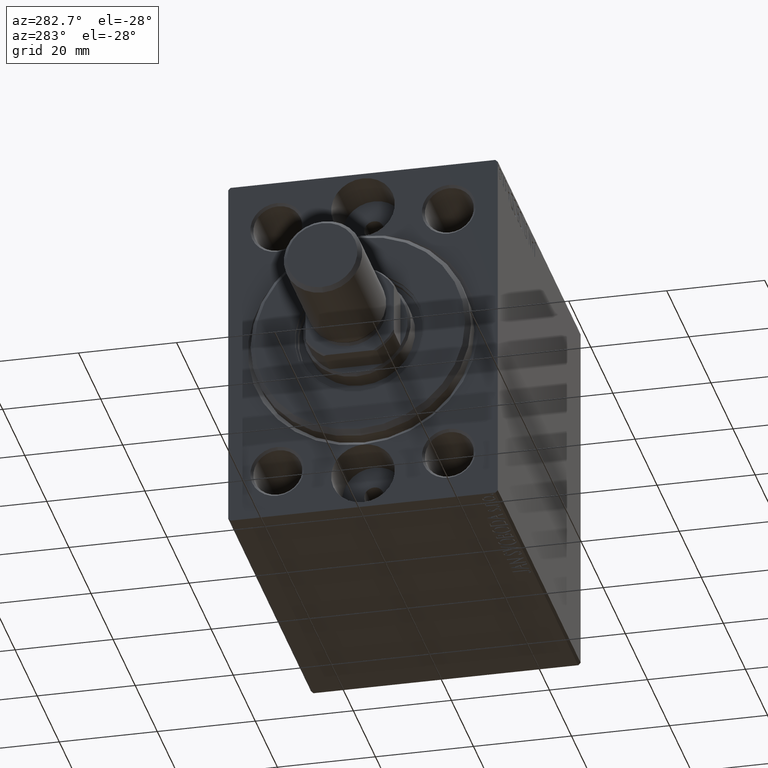
[diagram: clean part render]
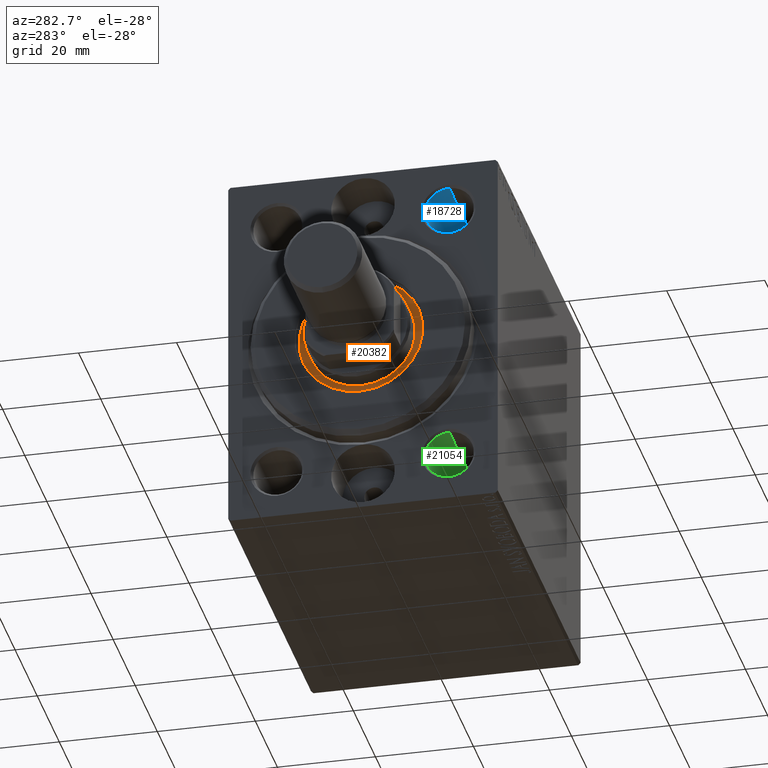
[diagram: same view with three faces highlighted in distinct colors, each labeled with its STEP entity id]
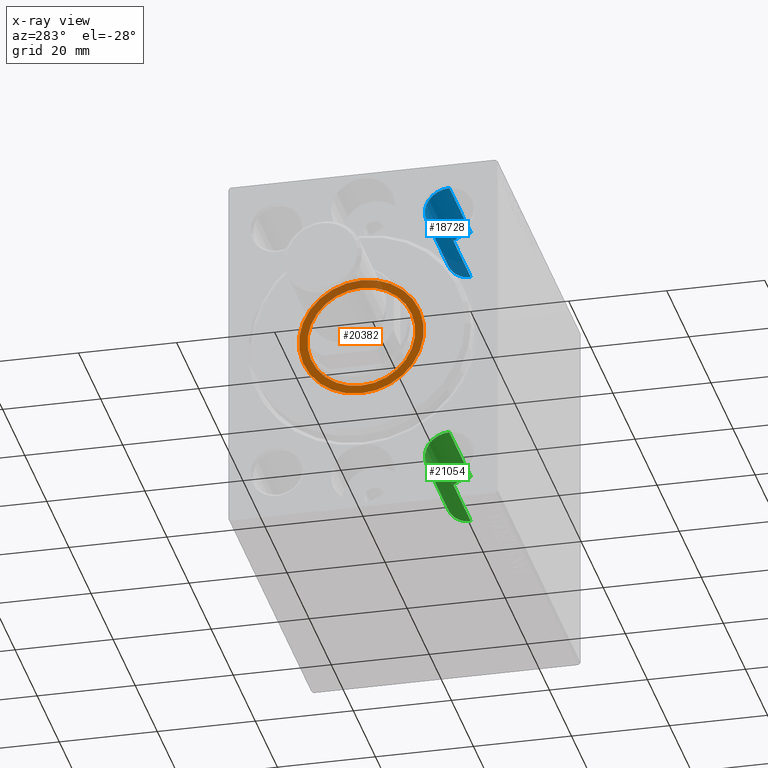
[diagram: x-ray of the same camera — body ghosted, the three highlighted faces saturated]
A machine part, auxiliary view with three faces highlighted in distinct colors.
The next image is the same camera in x-ray (body ghosted, the three faces saturated) — at least one of them is partly hidden behind the body in this view.
Their STEP definitions:

[orange] entity #20382 — the highlighted planar face has unit normal (-1, 0, 0).
#2315 = EDGE_CURVE ( 'NONE', #20104, #41399, #23286, .T. ) ;
#5471 = DIRECTION ( 'NONE',  ( 1.000000000000000000, 0.000000000000000000, 0.000000000000000000 ) ) ;
#6119 = CARTESIAN_POINT ( 'NONE',  ( 1.499999999999999556, 1.347111479062088405E-15, 11.00000000000000000 ) ) ;
#6175 = CARTESIAN_POINT ( 'NONE',  ( 1.500000000000000000, 0.000000000000000000, 12.75000000000000000 ) ) ;
#7501 = VERTEX_POINT ( 'NONE', #6119 ) ;
#8800 = DIRECTION ( 'NONE',  ( 0.000000000000000000, 0.000000000000000000, -1.000000000000000000 ) ) ;
#8837 = DIRECTION ( 'NONE',  ( 0.000000000000000000, 0.000000000000000000, -1.000000000000000000 ) ) ;
#9487 = CARTESIAN_POINT ( 'NONE',  ( 1.500000000000000000, 0.000000000000000000, 0.000000000000000000 ) ) ;
#9710 = CARTESIAN_POINT ( 'NONE',  ( 1.500000000000000000, 0.000000000000000000, 0.000000000000000000 ) ) ;
#10539 = CIRCLE ( 'NONE', #13434, 12.75000000000000000 ) ;
#10987 = AXIS2_PLACEMENT_3D ( 'NONE', #18367, #35925, #42475 ) ;
#11066 = CARTESIAN_POINT ( 'NONE',  ( 1.500000000000000000, 1.561424668912874914E-15, -12.75000000000000000 ) ) ;
#11866 = ORIENTED_EDGE ( 'NONE', *, *, #38008, .T. ) ;
#13222 = VERTEX_POINT ( 'NONE', #20465 ) ;
#13434 = AXIS2_PLACEMENT_3D ( 'NONE', #9487, #39892, #8800 ) ;
#18123 = AXIS2_PLACEMENT_3D ( 'NONE', #26169, #5471, #8837 ) ;
#18367 = CARTESIAN_POINT ( 'NONE',  ( 1.499999999999999556, 0.000000000000000000, 0.000000000000000000 ) ) ;
#20104 = VERTEX_POINT ( 'NONE', #6175 ) ;
#20382 = ADVANCED_FACE ( 'NONE', ( #29537, #29756 ), #39675, .T. ) ;
#20465 = CARTESIAN_POINT ( 'NONE',  ( 1.499999999999999556, 0.000000000000000000, -11.00000000000000000 ) ) ;
#23286 = CIRCLE ( 'NONE', #36224, 12.75000000000000000 ) ;
#26169 = CARTESIAN_POINT ( 'NONE',  ( 1.499999999999999556, 0.000000000000000000, 0.000000000000000000 ) ) ;
#26377 = CARTESIAN_POINT ( 'NONE',  ( 1.500000000000000000, 0.000000000000000000, 0.000000000000000000 ) ) ;
#26823 = DIRECTION ( 'NONE',  ( 0.000000000000000000, 0.000000000000000000, -1.000000000000000000 ) ) ;
#26870 = EDGE_CURVE ( 'NONE', #13222, #7501, #37564, .T. ) ;
#27889 = EDGE_CURVE ( 'NONE', #7501, #13222, #35425, .T. ) ;
#29383 = AXIS2_PLACEMENT_3D ( 'NONE', #26377, #43739, #39900 ) ;
#29537 = FACE_BOUND ( 'NONE', #30896, .T. ) ;
#29756 = FACE_OUTER_BOUND ( 'NONE', #41626, .T. ) ;
#30896 = EDGE_LOOP ( 'NONE', ( #32764, #37864 ) ) ;
#32764 = ORIENTED_EDGE ( 'NONE', *, *, #26870, .F. ) ;
#35425 = CIRCLE ( 'NONE', #10987, 11.00000000000000000 ) ;
#35925 = DIRECTION ( 'NONE',  ( 1.000000000000000000, 0.000000000000000000, 0.000000000000000000 ) ) ;
#36224 = AXIS2_PLACEMENT_3D ( 'NONE', #9710, #36729, #26823 ) ;
#36729 = DIRECTION ( 'NONE',  ( 1.000000000000000000, 0.000000000000000000, 0.000000000000000000 ) ) ;
#37434 = ORIENTED_EDGE ( 'NONE', *, *, #2315, .T. ) ;
#37564 = CIRCLE ( 'NONE', #18123, 11.00000000000000000 ) ;
#37864 = ORIENTED_EDGE ( 'NONE', *, *, #27889, .F. ) ;
#38008 = EDGE_CURVE ( 'NONE', #41399, #20104, #10539, .T. ) ;
#39675 = PLANE ( 'NONE',  #29383 ) ;
#39892 = DIRECTION ( 'NONE',  ( 1.000000000000000000, 0.000000000000000000, 0.000000000000000000 ) ) ;
#39900 = DIRECTION ( 'NONE',  ( 0.000000000000000000, 0.000000000000000000, -1.000000000000000000 ) ) ;
#41399 = VERTEX_POINT ( 'NONE', #11066 ) ;
#41626 = EDGE_LOOP ( 'NONE', ( #37434, #11866 ) ) ;
#42475 = DIRECTION ( 'NONE',  ( 0.000000000000000000, 0.000000000000000000, -1.000000000000000000 ) ) ;
#43739 = DIRECTION ( 'NONE',  ( 1.000000000000000000, 0.000000000000000000, 0.000000000000000000 ) ) ;

[blue] entity #18728 — the highlighted cylindrical surface (edge-blend (fillet) strip) has radius 5 mm, axis along (-1, -0, -0).
#1689 = ORIENTED_EDGE ( 'NONE', *, *, #41280, .T. ) ;
#2580 = DIRECTION ( 'NONE',  ( -1.000000000000000000, 0.000000000000000000, 0.000000000000000000 ) ) ;
#3569 = DIRECTION ( 'NONE',  ( -1.000000000000000000, -0.000000000000000000, -0.000000000000000000 ) ) ;
#3849 = DIRECTION ( 'NONE',  ( -1.000000000000000000, -0.000000000000000000, -0.000000000000000000 ) ) ;
#4817 = AXIS2_PLACEMENT_3D ( 'NONE', #10372, #3849, #44402 ) ;
#5136 = DIRECTION ( 'NONE',  ( 0.000000000000000000, 0.000000000000000000, 1.000000000000000000 ) ) ;
#5301 = CARTESIAN_POINT ( 'NONE',  ( 20.00000000000000000, -17.50000000000000000, 22.50000000000000711 ) ) ;
#7014 = CIRCLE ( 'NONE', #4817, 4.999999999999993783 ) ;
#10372 = CARTESIAN_POINT ( 'NONE',  ( 20.00000000000000000, -17.50000000000000000, 27.50000000000000000 ) ) ;
#11443 = CARTESIAN_POINT ( 'NONE',  ( 0.000000000000000000, -17.50000000000000000, 27.50000000000000000 ) ) ;
#18114 = VERTEX_POINT ( 'NONE', #35452 ) ;
#18517 = ORIENTED_EDGE ( 'NONE', *, *, #18942, .F. ) ;
#18728 = ADVANCED_FACE ( 'NONE', ( #21788 ), #35968, .F. ) ;
#18942 = EDGE_CURVE ( 'NONE', #36408, #24925, #40724, .T. ) ;
#21788 = FACE_OUTER_BOUND ( 'NONE', #42829, .T. ) ;
#22247 = DIRECTION ( 'NONE',  ( -1.000000000000000000, -0.000000000000000000, -0.000000000000000000 ) ) ;
#24925 = VERTEX_POINT ( 'NONE', #38573 ) ;
#25150 = VERTEX_POINT ( 'NONE', #35850 ) ;
#25395 = ORIENTED_EDGE ( 'NONE', *, *, #38580, .T. ) ;
#26191 = DIRECTION ( 'NONE',  ( 0.000000000000000000, 0.000000000000000000, -1.000000000000000000 ) ) ;
#29132 = LINE ( 'NONE', #36330, #43766 ) ;
#29987 = AXIS2_PLACEMENT_3D ( 'NONE', #40628, #2580, #26191 ) ;
#30100 = AXIS2_PLACEMENT_3D ( 'NONE', #11443, #22247, #5136 ) ;
#34310 = CIRCLE ( 'NONE', #29987, 4.999999999999997335 ) ;
#35452 = CARTESIAN_POINT ( 'NONE',  ( 20.00000000000000000, -17.50000000000000000, 32.49999999999999289 ) ) ;
#35850 = CARTESIAN_POINT ( 'NONE',  ( 0.5000000000000246470, -17.50000000000000000, 32.50000000000000000 ) ) ;
#35886 = DIRECTION ( 'NONE',  ( -1.000000000000000000, -0.000000000000000000, -0.000000000000000000 ) ) ;
#35968 = CYLINDRICAL_SURFACE ( 'NONE', #30100, 5.000000000000000888 ) ;
#36330 = CARTESIAN_POINT ( 'NONE',  ( 0.000000000000000000, -17.50000000000000000, 32.50000000000000000 ) ) ;
#36408 = VERTEX_POINT ( 'NONE', #5301 ) ;
#37163 = ORIENTED_EDGE ( 'NONE', *, *, #38083, .F. ) ;
#37275 = VECTOR ( 'NONE', #3569, 1000.000000000000000 ) ;
#37767 = CARTESIAN_POINT ( 'NONE',  ( 0.000000000000000000, -17.50000000000000000, 22.50000000000000355 ) ) ;
#38083 = EDGE_CURVE ( 'NONE', #18114, #36408, #7014, .T. ) ;
#38573 = CARTESIAN_POINT ( 'NONE',  ( 0.5000000000000246470, -17.50000000000000000, 22.50000000000000355 ) ) ;
#38580 = EDGE_CURVE ( 'NONE', #25150, #24925, #34310, .T. ) ;
#40628 = CARTESIAN_POINT ( 'NONE',  ( 0.5000000000000246470, -17.50000000000000000, 27.50000000000000000 ) ) ;
#40724 = LINE ( 'NONE', #37767, #37275 ) ;
#41280 = EDGE_CURVE ( 'NONE', #18114, #25150, #29132, .T. ) ;
#42829 = EDGE_LOOP ( 'NONE', ( #18517, #37163, #1689, #25395 ) ) ;
#43766 = VECTOR ( 'NONE', #35886, 1000.000000000000000 ) ;
#44402 = DIRECTION ( 'NONE',  ( 0.000000000000000000, 0.000000000000000000, 1.000000000000000000 ) ) ;

[green] entity #21054 — the highlighted cylindrical surface (edge-blend (fillet) strip) has radius 5 mm, axis along (-1, -0, -0).
#2163 = VERTEX_POINT ( 'NONE', #29299 ) ;
#2892 = EDGE_CURVE ( 'NONE', #15597, #25548, #5672, .T. ) ;
#3039 = DIRECTION ( 'NONE',  ( -1.000000000000000000, -0.000000000000000000, -0.000000000000000000 ) ) ;
#3260 = LINE ( 'NONE', #27940, #42948 ) ;
#4309 = CARTESIAN_POINT ( 'NONE',  ( 0.5000000000000247580, -17.50000000000000000, -27.49999999999999645 ) ) ;
#4579 = CARTESIAN_POINT ( 'NONE',  ( 20.00000000000000000, -17.50000000000000000, -22.50000000000000000 ) ) ;
#5492 = DIRECTION ( 'NONE',  ( 0.000000000000000000, 0.000000000000000000, 1.000000000000000000 ) ) ;
#5672 = LINE ( 'NONE', #31634, #17518 ) ;
#6838 = CARTESIAN_POINT ( 'NONE',  ( 0.000000000000000000, -17.50000000000000000, -27.49999999999999645 ) ) ;
#7240 = DIRECTION ( 'NONE',  ( -1.000000000000000000, 0.000000000000000000, 0.000000000000000000 ) ) ;
#10219 = EDGE_CURVE ( 'NONE', #2163, #25548, #44363, .T. ) ;
#10437 = FACE_OUTER_BOUND ( 'NONE', #43880, .T. ) ;
#10782 = ORIENTED_EDGE ( 'NONE', *, *, #10219, .T. ) ;
#12014 = DIRECTION ( 'NONE',  ( -1.000000000000000000, -0.000000000000000000, -0.000000000000000000 ) ) ;
#15597 = VERTEX_POINT ( 'NONE', #21280 ) ;
#15904 = EDGE_CURVE ( 'NONE', #30942, #2163, #3260, .T. ) ;
#17099 = ORIENTED_EDGE ( 'NONE', *, *, #2892, .F. ) ;
#17518 = VECTOR ( 'NONE', #19170, 1000.000000000000000 ) ;
#19170 = DIRECTION ( 'NONE',  ( -1.000000000000000000, -0.000000000000000000, -0.000000000000000000 ) ) ;
#20793 = CYLINDRICAL_SURFACE ( 'NONE', #33012, 4.999999999999997335 ) ;
#21054 = ADVANCED_FACE ( 'NONE', ( #10437 ), #20793, .F. ) ;
#21280 = CARTESIAN_POINT ( 'NONE',  ( 20.00000000000000000, -17.50000000000000000, -32.49999999999999289 ) ) ;
#25396 = CIRCLE ( 'NONE', #44161, 4.999999999999997335 ) ;
#25548 = VERTEX_POINT ( 'NONE', #33041 ) ;
#27764 = DIRECTION ( 'NONE',  ( 0.000000000000000000, 0.000000000000000000, 1.000000000000000000 ) ) ;
#27940 = CARTESIAN_POINT ( 'NONE',  ( 0.000000000000000000, -17.50000000000000000, -22.50000000000000000 ) ) ;
#28370 = ORIENTED_EDGE ( 'NONE', *, *, #15904, .T. ) ;
#29107 = EDGE_CURVE ( 'NONE', #30942, #15597, #25396, .T. ) ;
#29299 = CARTESIAN_POINT ( 'NONE',  ( 0.5000000000000247580, -17.50000000000000000, -22.50000000000000000 ) ) ;
#30942 = VERTEX_POINT ( 'NONE', #4579 ) ;
#31634 = CARTESIAN_POINT ( 'NONE',  ( 0.000000000000000000, -17.50000000000000000, -32.49999999999999289 ) ) ;
#33012 = AXIS2_PLACEMENT_3D ( 'NONE', #6838, #3039, #27764 ) ;
#33041 = CARTESIAN_POINT ( 'NONE',  ( 0.5000000000000247580, -17.50000000000000000, -32.49999999999999289 ) ) ;
#35696 = AXIS2_PLACEMENT_3D ( 'NONE', #4309, #7240, #37638 ) ;
#37638 = DIRECTION ( 'NONE',  ( 0.000000000000000000, 0.000000000000000000, -1.000000000000000000 ) ) ;
#41680 = DIRECTION ( 'NONE',  ( -1.000000000000000000, -0.000000000000000000, -0.000000000000000000 ) ) ;
#42878 = CARTESIAN_POINT ( 'NONE',  ( 20.00000000000000000, -17.50000000000000000, -27.49999999999999645 ) ) ;
#42948 = VECTOR ( 'NONE', #41680, 1000.000000000000000 ) ;
#43335 = ORIENTED_EDGE ( 'NONE', *, *, #29107, .F. ) ;
#43880 = EDGE_LOOP ( 'NONE', ( #17099, #43335, #28370, #10782 ) ) ;
#44161 = AXIS2_PLACEMENT_3D ( 'NONE', #42878, #12014, #5492 ) ;
#44363 = CIRCLE ( 'NONE', #35696, 4.999999999999997335 ) ;